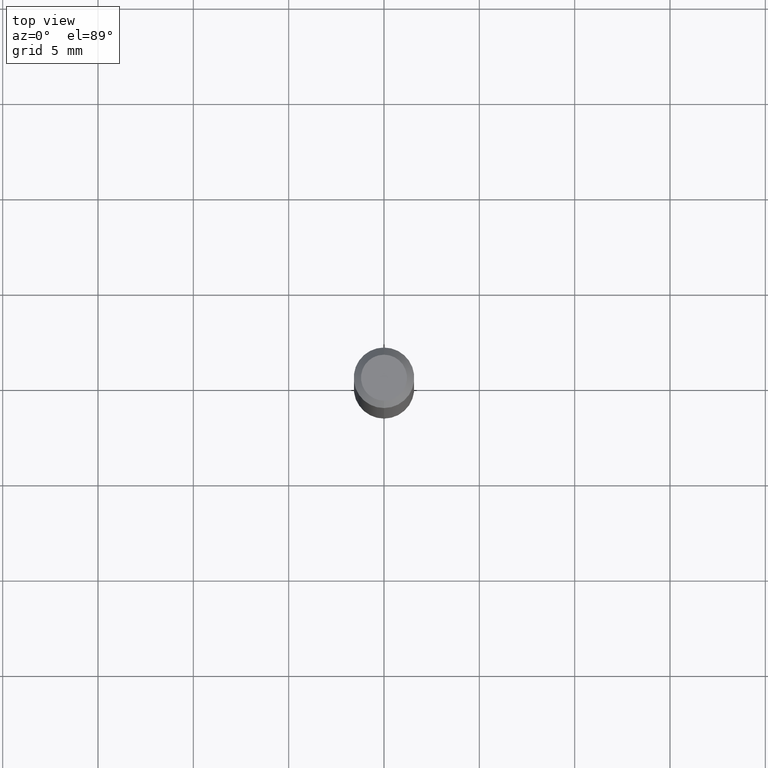
[diagram: clean part render]
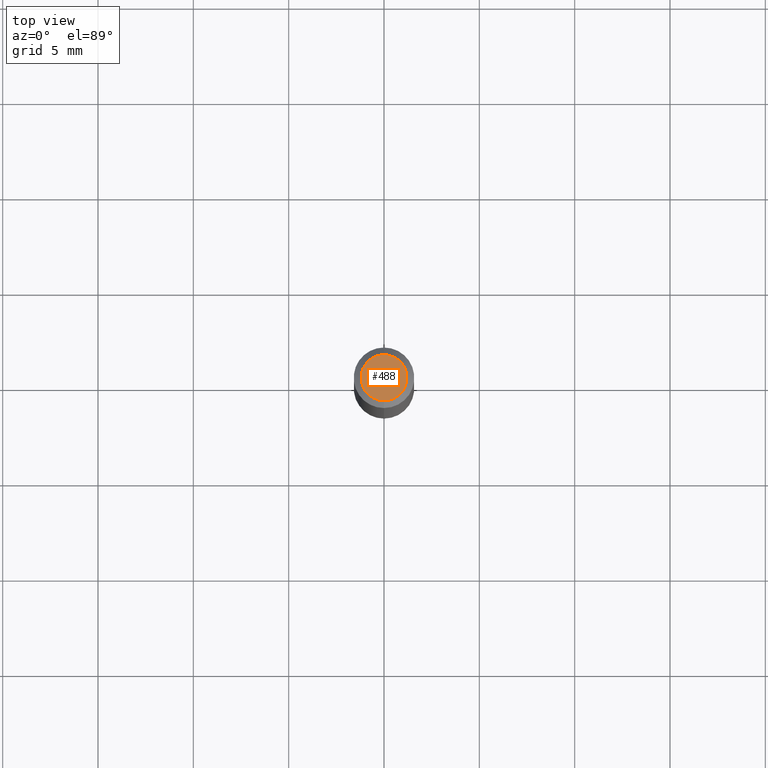
[diagram: same view with one face highlighted and labeled with its STEP entity id]
A machine part, top view. The second image highlights one B-rep face of the part: STEP entity #488.
In plain terms, the highlighted planar face has unit normal (0, -0, -1).
Its self-contained STEP definition (entity closure, byte-faithful):
#4 = CIRCLE ( 'NONE', #237, 0.04750000000000000749 ) ;
#5 = EDGE_LOOP ( 'NONE', ( #428, #290 ) ) ;
#6 = CARTESIAN_POINT ( 'NONE',  ( -6.682171226906381359E-45, 9.529232442263498646E-31, 2.730877953512450697E-16 ) ) ;
#24 = EDGE_CURVE ( 'NONE', #193, #116, #4, .T. ) ;
#34 = DIRECTION ( 'NONE',  ( -6.982962677686265133E-15, -1.000000000000000000, 3.489439149049856002E-15 ) ) ;
#52 = AXIS2_PLACEMENT_3D ( 'NONE', #6, #73, #34 ) ;
#73 = DIRECTION ( 'NONE',  ( -2.446894859695865878E-29, 3.489439149049856002E-15, 1.000000000000000000 ) ) ;
#98 = CARTESIAN_POINT ( 'NONE',  ( 3.316907271900976589E-16, 0.04750000000000000749, -2.920446190424566493E-17 ) ) ;
#105 = DIRECTION ( 'NONE',  ( 2.446894859695865317E-29, -3.489439149049856397E-15, -1.000000000000000000 ) ) ;
#116 = VERTEX_POINT ( 'NONE', #443 ) ;
#173 = EDGE_CURVE ( 'NONE', #116, #193, #505, .T. ) ;
#193 = VERTEX_POINT ( 'NONE', #415 ) ;
#237 = AXIS2_PLACEMENT_3D ( 'NONE', #425, #383, #347 ) ;
#270 = FACE_OUTER_BOUND ( 'NONE', #5, .T. ) ;
#273 = AXIS2_PLACEMENT_3D ( 'NONE', #98, #105, #424 ) ;
#290 = ORIENTED_EDGE ( 'NONE', *, *, #24, .T. ) ;
#347 = DIRECTION ( 'NONE',  ( -6.982962677686265133E-15, -1.000000000000000000, 3.489439149049856002E-15 ) ) ;
#383 = DIRECTION ( 'NONE',  ( -2.446894859695865878E-29, 3.489439149049856002E-15, 1.000000000000000000 ) ) ;
#415 = CARTESIAN_POINT ( 'NONE',  ( -3.773273898774340269E-16, -0.04750000000000000749, 4.388361549311132634E-16 ) ) ;
#424 = DIRECTION ( 'NONE',  ( 6.982962677686265922E-15, 1.000000000000000000, -3.489439149049856397E-15 ) ) ;
#425 = CARTESIAN_POINT ( 'NONE',  ( -6.682171226906381359E-45, 9.529232442263498646E-31, 2.730877953512450697E-16 ) ) ;
#428 = ORIENTED_EDGE ( 'NONE', *, *, #173, .T. ) ;
#443 = CARTESIAN_POINT ( 'NONE',  ( 3.840629472727447874E-16, 0.04750000000000000749, 1.073394357713768884E-16 ) ) ;
#466 = PLANE ( 'NONE',  #273 ) ;
#488 = ADVANCED_FACE ( 'NONE', ( #270 ), #466, .F. ) ;
#505 = CIRCLE ( 'NONE', #52, 0.04750000000000000749 ) ;